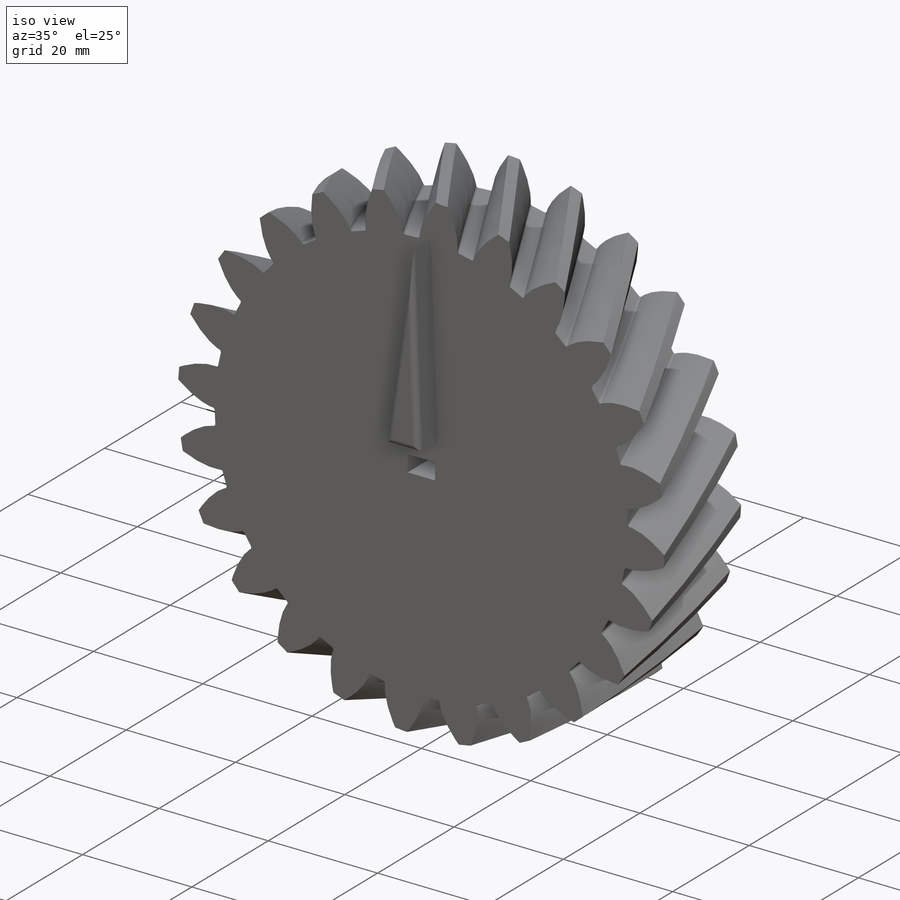
[diagram: iso view]
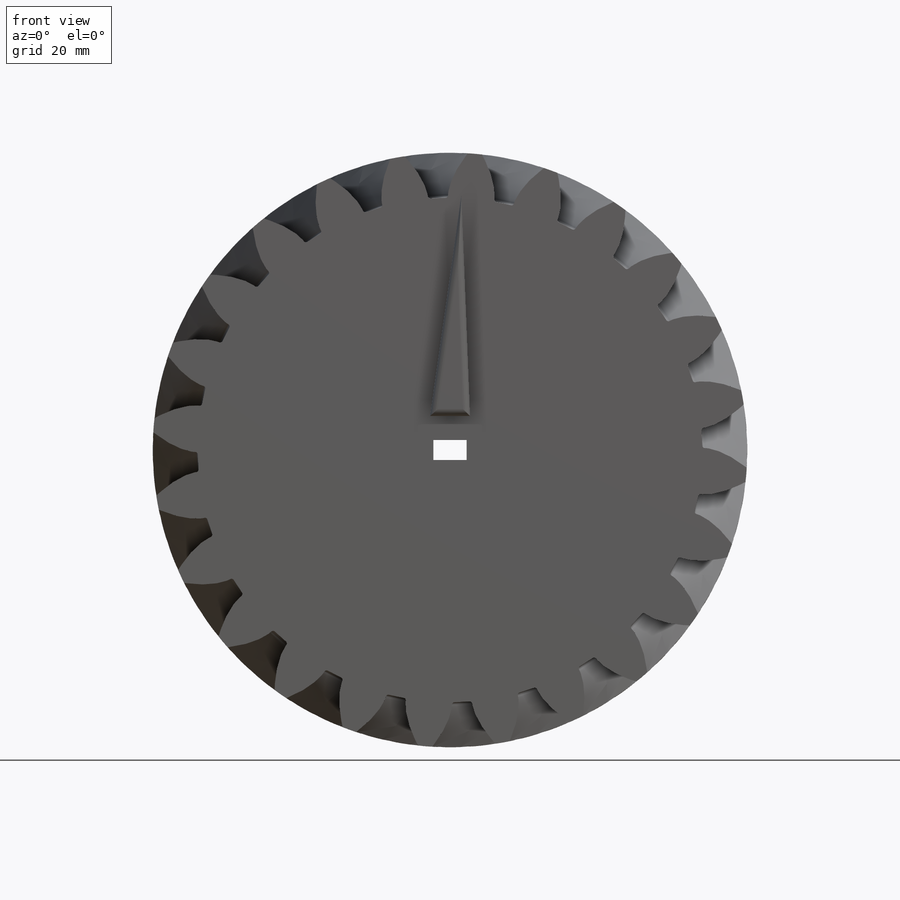
[diagram: front view]
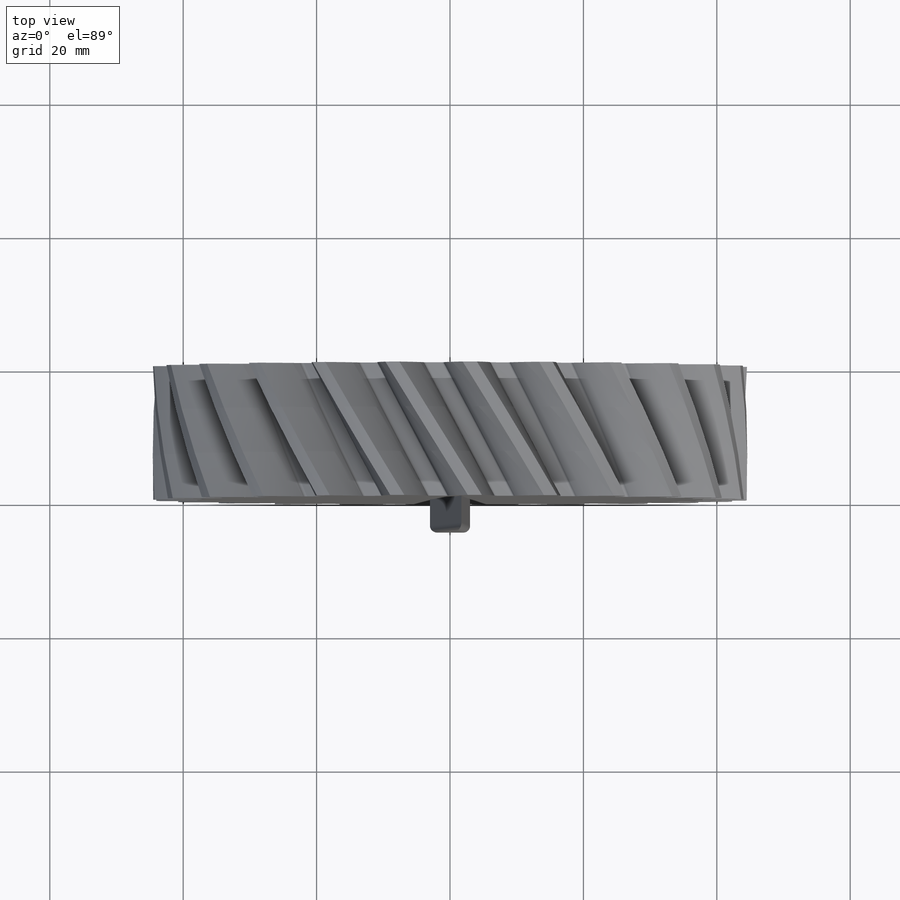
[diagram: top view]
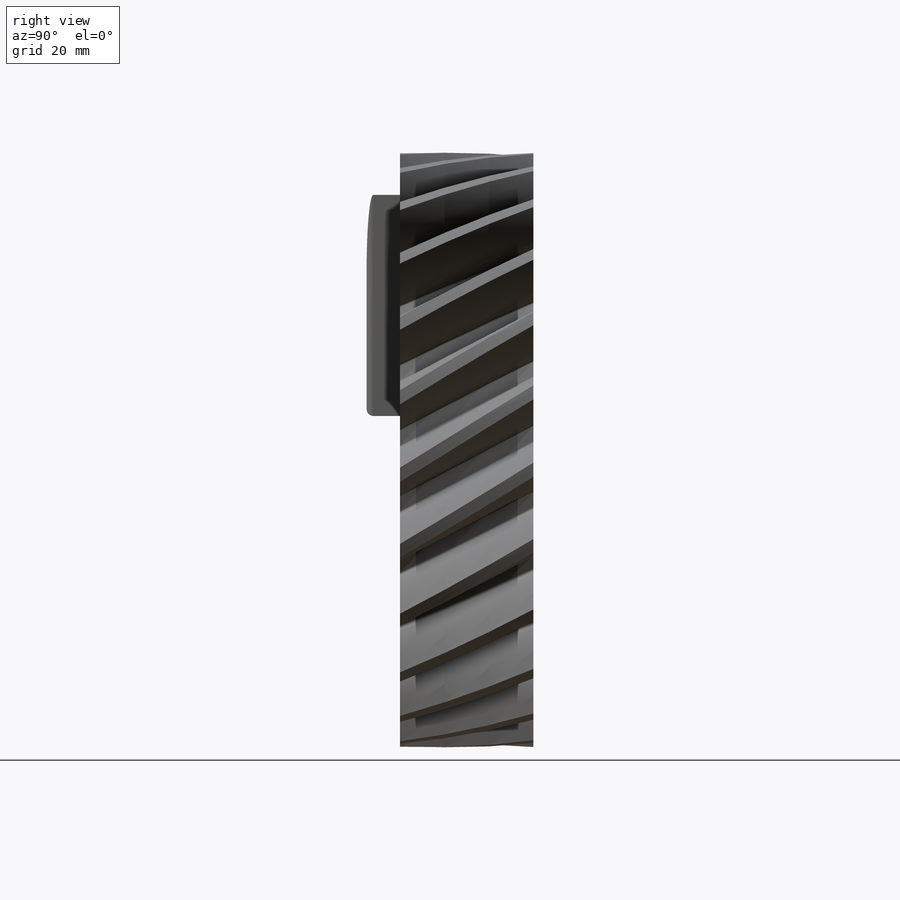
[diagram: right view]
SOLIDWORKS PART (.sldprt)
format: sldprt  version: not decoded by parser v0  size: 993,792 bytes
history: native  units: mm
features: sketch x9, plane x3, extrude x2, material x1, helix x1, sweep x1, pattern_circular x1, cut_extrude x1, fillet x1 (+13 scaffold rows collapsed)
feature tree (33):
  scaffold x13  (default folders/planes/origin — collapsed)
  material  "Material <not specified>"
  sketch  "Sketch1"  dims[c1.D1=83.1384mm c1.D3=89.1384mm c1.D4=89.1384mm c1.D5=75.6384mm c1.D2=~51.447575mm c2.D2=22.7959deg c2.D3=~49.418194mm c3.D3=~33.765202deg c3.D4=~32.263097mm c4.D4=10.0deg c4.D5=~51.670139mm c5.D5=10.0deg c5.D6=~50.664648mm c6.D6=~178.632588deg c7.D6=~44.046878mm c8.D6=10.0deg c8.D7=~46.59105mm c9.D7=10.0deg c9.D3=~40.618539mm c10.D3=~3.749995deg]
  extrude  "Boss-Extrude1"  Depth=20mm
  sketch  "Sketch2"  dims[D1=~83.138439mm]
  helix  "Helix/Spiral1"  Pitch=20mm
  sketch  "Sketch4"  dims[c1.D1=~83.138439mm c1.D4=~89.138439mm c1.D6=2.0mm c1.D7=2.0mm c1.D8=0.4mm c1.D9=0.4mm c1.D2=~90.459683mm c2.D2=~22.79588deg c2.D3=~66.992872mm c3.D3=20.0deg c3.D4=~68.783628mm c4.D4=10.0deg c4.D5=~75.401485mm c5.D5=10.0deg c5.D6=~59.716269mm c6.D6=10.0deg c6.D7=~48.571976mm c7.D7=10.0deg c7.D3=~51.336598mm c8.D3=3.75deg c8.D5=~75.822422mm c9.D5=~25.217185deg]
  plane  "Plane1"
  sketch  "Sketch5"
  plane  "Plane2"
  sketch  "Sketch6"
  plane  "Plane3"
  sketch  "Sketch7"
  sketch  "Sketch8"  dims[c1.D1=~16.663458mm c2.D1=~30.001469deg]
  sweep  "Sweep1"
  pattern_circular  "CirPattern1"  Count=24 Angle=360deg
  sketch  "Sketch9"  dims[D1=5.0mm D2=3.0mm D3=2.5mm D4=1.5mm]
  cut_extrude  "Cut-Extrude1"  [1 undecoded]
  sketch  "Sketch10"
  extrude  "Boss-Extrude2"  Depth=5mm
  fillet  "Fillet1"  Radius=1mm
decode coverage: 10 of 16 modeling features carry decoded parameters
note: ~ marks probable driven/reference dimensions
note: 1 parameter value undecoded
note: suppression state not decoded; provenance and decode notes live in map.json
